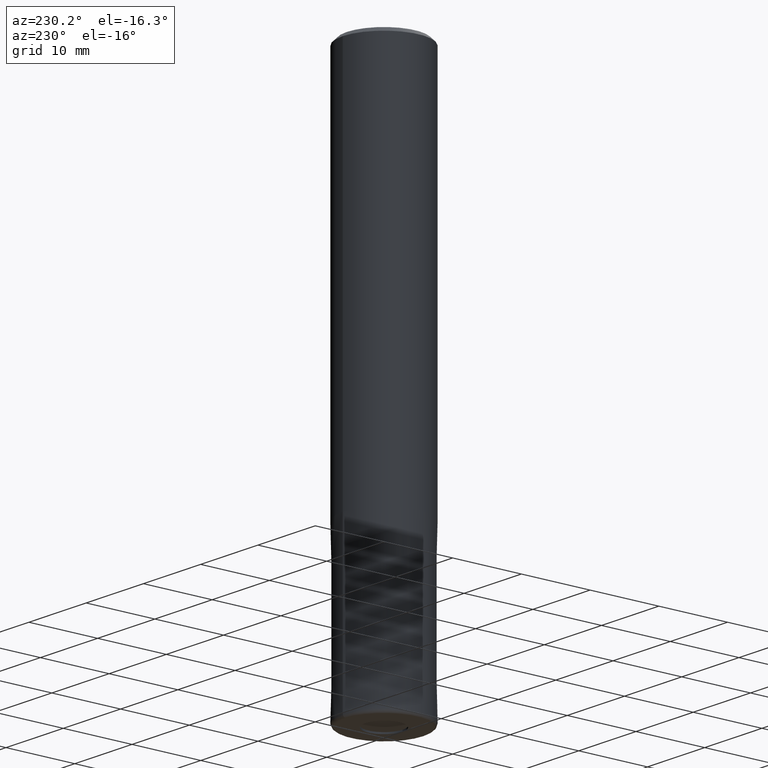
[diagram: clean part render]
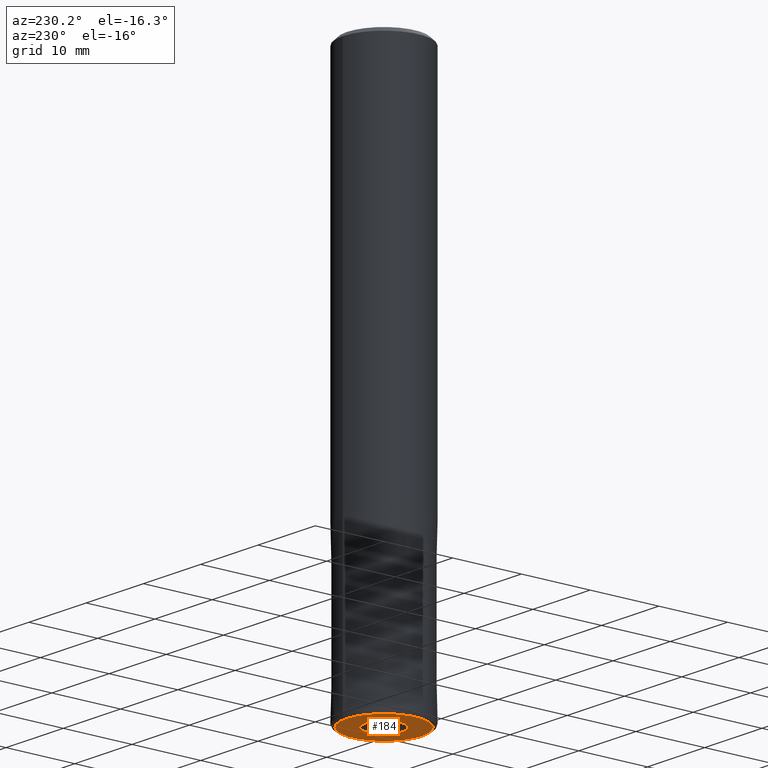
[diagram: same view with one face highlighted and labeled with its STEP entity id]
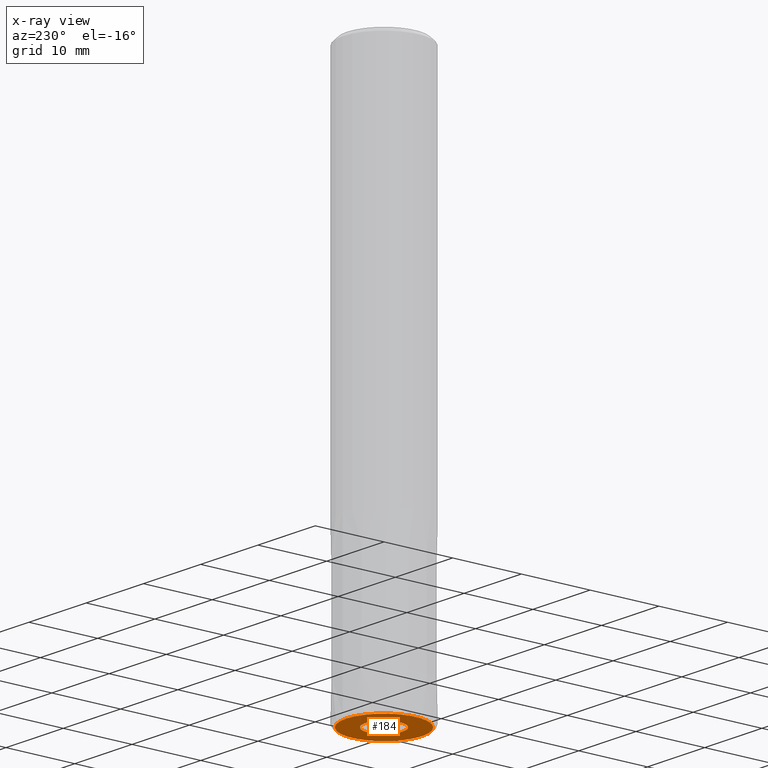
[diagram: x-ray of the same camera — body ghosted, the highlighted face saturated]
A machine part, auxiliary view. The second image highlights one B-rep face of the part: STEP entity #184.
The next image is the same camera in x-ray: the body ghosted, the highlighted face saturated — about 0% of this face is hidden behind the body in this view.
In plain terms, the highlighted planar face has unit normal (0, 0, -1).
Its self-contained STEP definition (entity closure, byte-faithful):
#104=VERTEX_POINT('',#265);
#130=EDGE_CURVE('',#104,#198,#292,.T.);
#160=EDGE_CURVE('',#198,#104,#330,.T.);
#184=ADVANCED_FACE('',(#356,#357),#358,.T.);
#198=VERTEX_POINT('',#373);
#216=VERTEX_POINT('',#394);
#220=EDGE_CURVE('',#216,#238,#398,.T.);
#234=EDGE_CURVE('',#238,#216,#415,.T.);
#238=VERTEX_POINT('',#419);
#265=CARTESIAN_POINT('',(0.0,2.7,-80.0));
#292=CIRCLE('',#474,2.7);
#330=CIRCLE('',#520,2.7);
#356=FACE_BOUND('',#554,.T.);
#357=FACE_OUTER_BOUND('',#555,.T.);
#358=PLANE('',#556);
#373=CARTESIAN_POINT('',(3.30643715532042E-016,-2.7,-80.0));
#394=CARTESIAN_POINT('',(6.73533494602307E-016,-5.5,-80.0));
#398=CIRCLE('',#605,5.5);
#415=CIRCLE('',#624,5.5);
#419=CARTESIAN_POINT('',(0.0,5.5,-80.0));
#474=AXIS2_PLACEMENT_3D('',#666,#667,#668);
#520=AXIS2_PLACEMENT_3D('',#728,#729,#730);
#554=EDGE_LOOP('',(#757,#758));
#555=EDGE_LOOP('',(#759,#760));
#556=AXIS2_PLACEMENT_3D('',#761,#762,#763);
#605=AXIS2_PLACEMENT_3D('',#810,#811,#812);
#624=AXIS2_PLACEMENT_3D('',#840,#841,#842);
#666=CARTESIAN_POINT('',(0.0,0.0,-80.0));
#667=DIRECTION('',(0.0,0.0,-1.0));
#668=DIRECTION('',(0.0,1.0,0.0));
#728=CARTESIAN_POINT('',(0.0,0.0,-80.0));
#729=DIRECTION('',(0.0,0.0,-1.0));
#730=DIRECTION('',(0.0,1.0,0.0));
#757=ORIENTED_EDGE('',*,*,#130,.F.);
#758=ORIENTED_EDGE('',*,*,#160,.F.);
#759=ORIENTED_EDGE('',*,*,#234,.T.);
#760=ORIENTED_EDGE('',*,*,#220,.T.);
#761=CARTESIAN_POINT('',(0.0,4.1,-80.0));
#762=DIRECTION('',(0.0,0.0,-1.0));
#763=DIRECTION('',(0.0,1.0,0.0));
#810=CARTESIAN_POINT('',(0.0,0.0,-80.0));
#811=DIRECTION('',(0.0,0.0,-1.0));
#812=DIRECTION('',(0.0,1.0,0.0));
#840=CARTESIAN_POINT('',(0.0,0.0,-80.0));
#841=DIRECTION('',(0.0,0.0,-1.0));
#842=DIRECTION('',(0.0,1.0,0.0));